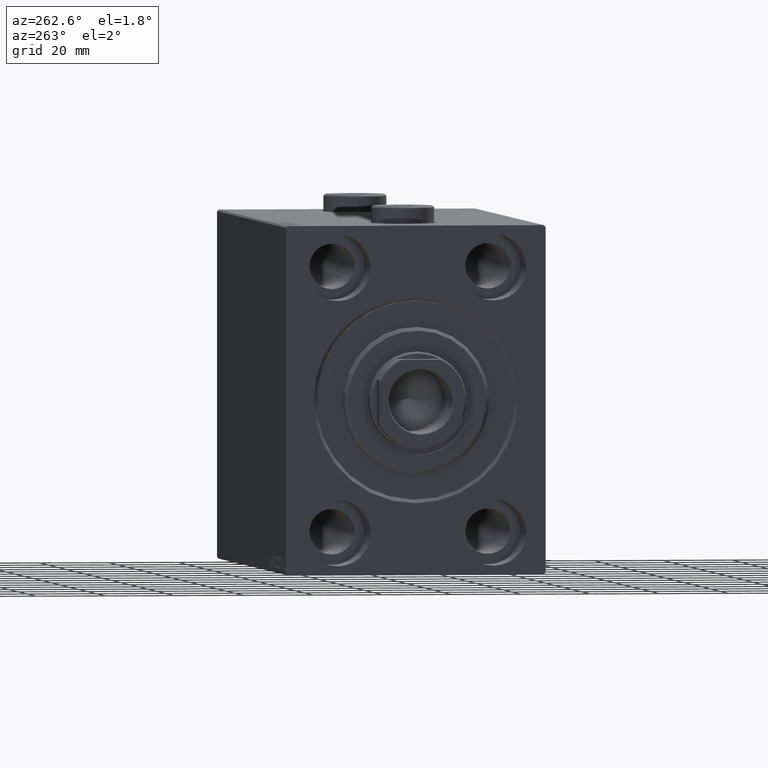
[diagram: clean part render]
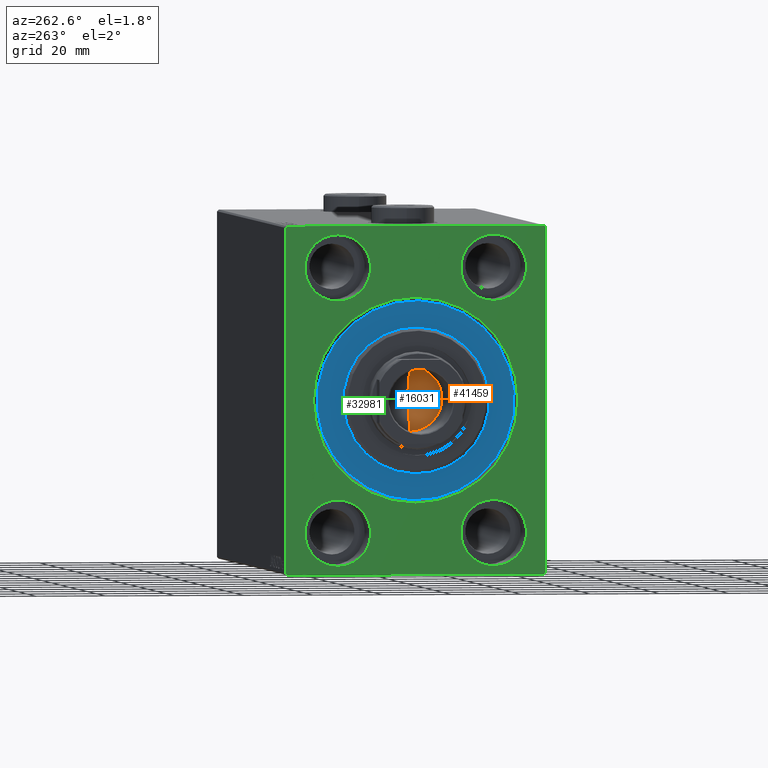
[diagram: same view with three faces highlighted in distinct colors, each labeled with its STEP entity id]
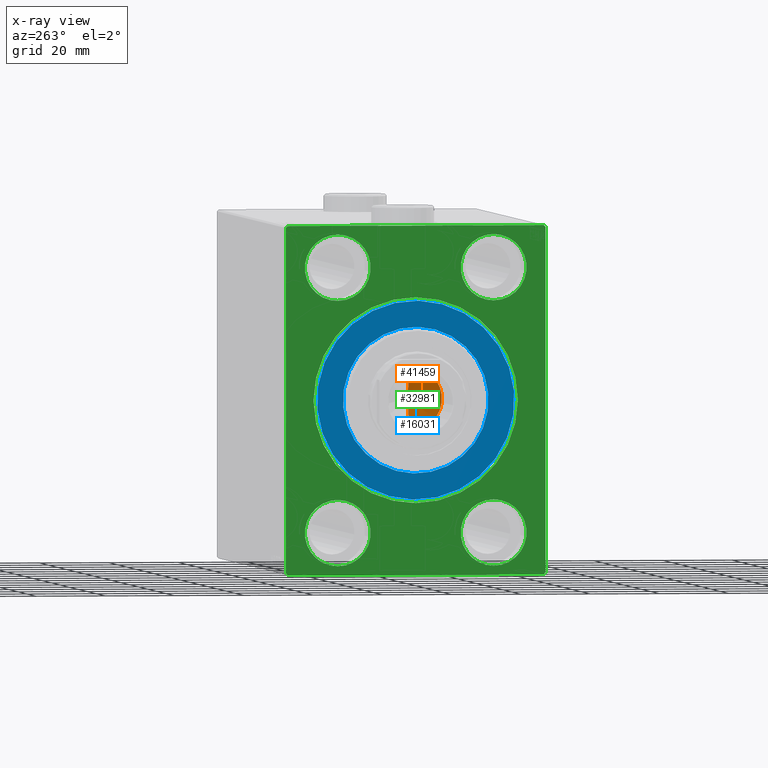
[diagram: x-ray of the same camera — body ghosted, the three highlighted faces saturated]
A machine part, auxiliary view with three faces highlighted in distinct colors.
The next image is the same camera in x-ray (body ghosted, the three faces saturated) — at least one of them is partly hidden behind the body in this view.
Their STEP definitions:

[orange] entity #41459 — the highlighted conical surface has half-angle 59 deg.
#547 = LINE ( 'NONE', #34926, #21147 ) ;
#1452 = DIRECTION ( 'NONE',  ( -0.8571673007021113344, 1.049727191138617463E-16, 0.5150380749100558209 ) ) ;
#1965 = CARTESIAN_POINT ( 'NONE',  ( -6.793016015247754405E-15, 0.000000000000000000, 120.4420392739950785 ) ) ;
#2909 = AXIS2_PLACEMENT_3D ( 'NONE', #24169, #15130, #17514 ) ;
#5193 = DIRECTION ( 'NONE',  ( -0.000000000000000000, -0.000000000000000000, 1.000000000000000000 ) ) ;
#8096 = CONICAL_SURFACE ( 'NONE', #28587, 9.249999999999994671, 1.029744258676652535 ) ;
#9778 = EDGE_LOOP ( 'NONE', ( #35232, #29695, #27644 ) ) ;
#10209 = EDGE_CURVE ( 'NONE', #35908, #23707, #547, .T. ) ;
#12288 = DIRECTION ( 'NONE',  ( 1.000000000000000000, 0.000000000000000000, 0.000000000000000000 ) ) ;
#13534 = VERTEX_POINT ( 'NONE', #30072 ) ;
#15130 = DIRECTION ( 'NONE',  ( -0.000000000000000000, -0.000000000000000000, 1.000000000000000000 ) ) ;
#17514 = DIRECTION ( 'NONE',  ( 1.000000000000000000, 0.000000000000000000, 0.000000000000000000 ) ) ;
#21147 = VECTOR ( 'NONE', #35592, 1000.000000000000000 ) ;
#21695 = CARTESIAN_POINT ( 'NONE',  ( 0.000000000000000000, 0.000000000000000000, 126.0000000000000284 ) ) ;
#23707 = VERTEX_POINT ( 'NONE', #39489 ) ;
#24169 = CARTESIAN_POINT ( 'NONE',  ( 0.000000000000000000, 0.000000000000000000, 126.0000000000000284 ) ) ;
#27644 = ORIENTED_EDGE ( 'NONE', *, *, #39535, .T. ) ;
#28587 = AXIS2_PLACEMENT_3D ( 'NONE', #21695, #5193, #12288 ) ;
#29695 = ORIENTED_EDGE ( 'NONE', *, *, #30519, .T. ) ;
#30072 = CARTESIAN_POINT ( 'NONE',  ( -9.249999999999994671, 1.132798289211300909E-15, 126.0000000000000284 ) ) ;
#30519 = EDGE_CURVE ( 'NONE', #35908, #13534, #45022, .T. ) ;
#33072 = CARTESIAN_POINT ( 'NONE',  ( -9.249999999999994671, 1.132798289211300909E-15, 126.0000000000000284 ) ) ;
#34926 = CARTESIAN_POINT ( 'NONE',  ( 9.249999999999994671, 0.000000000000000000, 126.0000000000000284 ) ) ;
#35098 = CIRCLE ( 'NONE', #2909, 9.249999999999994671 ) ;
#35232 = ORIENTED_EDGE ( 'NONE', *, *, #10209, .F. ) ;
#35592 = DIRECTION ( 'NONE',  ( 0.8571673007021113344, 0.000000000000000000, 0.5150380749100558209 ) ) ;
#35908 = VERTEX_POINT ( 'NONE', #1965 ) ;
#37043 = VECTOR ( 'NONE', #1452, 1000.000000000000000 ) ;
#39489 = CARTESIAN_POINT ( 'NONE',  ( 9.249999999999994671, 0.000000000000000000, 126.0000000000000284 ) ) ;
#39535 = EDGE_CURVE ( 'NONE', #13534, #23707, #35098, .T. ) ;
#41459 = ADVANCED_FACE ( 'NONE', ( #43002 ), #8096, .F. ) ;
#43002 = FACE_OUTER_BOUND ( 'NONE', #9778, .T. ) ;
#45022 = LINE ( 'NONE', #33072, #37043 ) ;

[blue] entity #16031 — the highlighted planar face has unit normal (1, 0, -0).
#978 = DIRECTION ( 'NONE',  ( 0.000000000000000000, 0.000000000000000000, 1.000000000000000000 ) ) ;
#1433 = FACE_OUTER_BOUND ( 'NONE', #12484, .T. ) ;
#5183 = AXIS2_PLACEMENT_3D ( 'NONE', #25950, #42470, #978 ) ;
#8649 = VERTEX_POINT ( 'NONE', #10970 ) ;
#9879 = VERTEX_POINT ( 'NONE', #35648 ) ;
#10970 = CARTESIAN_POINT ( 'NONE',  ( 0.000000000000000000, 0.000000000000000000, 21.00000000000000000 ) ) ;
#12069 = AXIS2_PLACEMENT_3D ( 'NONE', #13838, #14284, #27824 ) ;
#12484 = EDGE_LOOP ( 'NONE', ( #22077, #32961 ) ) ;
#13465 = CARTESIAN_POINT ( 'NONE',  ( 0.000000000000000000, 0.000000000000000000, 0.000000000000000000 ) ) ;
#13838 = CARTESIAN_POINT ( 'NONE',  ( 0.000000000000000000, 0.000000000000000000, 0.000000000000000000 ) ) ;
#14284 = DIRECTION ( 'NONE',  ( -1.000000000000000000, 0.000000000000000000, 0.000000000000000000 ) ) ;
#14299 = CIRCLE ( 'NONE', #12069, 28.50000000000000000 ) ;
#15628 = FACE_BOUND ( 'NONE', #25642, .T. ) ;
#15666 = VERTEX_POINT ( 'NONE', #25187 ) ;
#16031 = ADVANCED_FACE ( 'NONE', ( #15628, #1433 ), #21605, .F. ) ;
#16912 = CIRCLE ( 'NONE', #44723, 21.00000000000000000 ) ;
#19909 = CARTESIAN_POINT ( 'NONE',  ( 0.000000000000000000, 0.000000000000000000, -28.50000000000000000 ) ) ;
#21605 = PLANE ( 'NONE',  #5183 ) ;
#22077 = ORIENTED_EDGE ( 'NONE', *, *, #23617, .F. ) ;
#23093 = DIRECTION ( 'NONE',  ( 0.000000000000000000, 0.000000000000000000, 1.000000000000000000 ) ) ;
#23578 = DIRECTION ( 'NONE',  ( 0.000000000000000000, 0.000000000000000000, -1.000000000000000000 ) ) ;
#23617 = EDGE_CURVE ( 'NONE', #25319, #15666, #14299, .T. ) ;
#25187 = CARTESIAN_POINT ( 'NONE',  ( 0.000000000000000000, 3.490243377569956456E-15, 28.50000000000000000 ) ) ;
#25319 = VERTEX_POINT ( 'NONE', #19909 ) ;
#25642 = EDGE_LOOP ( 'NONE', ( #44313, #30105 ) ) ;
#25950 = CARTESIAN_POINT ( 'NONE',  ( 0.000000000000000000, 0.000000000000000000, 0.000000000000000000 ) ) ;
#27824 = DIRECTION ( 'NONE',  ( 0.000000000000000000, 0.000000000000000000, 1.000000000000000000 ) ) ;
#30105 = ORIENTED_EDGE ( 'NONE', *, *, #41191, .F. ) ;
#31249 = CIRCLE ( 'NONE', #31953, 28.50000000000000000 ) ;
#31397 = EDGE_CURVE ( 'NONE', #15666, #25319, #31249, .T. ) ;
#31953 = AXIS2_PLACEMENT_3D ( 'NONE', #40972, #40736, #23093 ) ;
#32961 = ORIENTED_EDGE ( 'NONE', *, *, #31397, .F. ) ;
#33641 = DIRECTION ( 'NONE',  ( 1.000000000000000000, -0.000000000000000000, 0.000000000000000000 ) ) ;
#34954 = CARTESIAN_POINT ( 'NONE',  ( 0.000000000000000000, 0.000000000000000000, 0.000000000000000000 ) ) ;
#35648 = CARTESIAN_POINT ( 'NONE',  ( 0.000000000000000000, 2.571758278209441661E-15, -21.00000000000000000 ) ) ;
#36621 = AXIS2_PLACEMENT_3D ( 'NONE', #13465, #33641, #23578 ) ;
#40736 = DIRECTION ( 'NONE',  ( -1.000000000000000000, 0.000000000000000000, 0.000000000000000000 ) ) ;
#40972 = CARTESIAN_POINT ( 'NONE',  ( 0.000000000000000000, 0.000000000000000000, 0.000000000000000000 ) ) ;
#41191 = EDGE_CURVE ( 'NONE', #9879, #8649, #43925, .T. ) ;
#42064 = DIRECTION ( 'NONE',  ( 1.000000000000000000, -0.000000000000000000, 0.000000000000000000 ) ) ;
#42291 = DIRECTION ( 'NONE',  ( 0.000000000000000000, 0.000000000000000000, -1.000000000000000000 ) ) ;
#42470 = DIRECTION ( 'NONE',  ( -1.000000000000000000, 0.000000000000000000, 0.000000000000000000 ) ) ;
#42475 = EDGE_CURVE ( 'NONE', #8649, #9879, #16912, .T. ) ;
#43925 = CIRCLE ( 'NONE', #36621, 21.00000000000000000 ) ;
#44313 = ORIENTED_EDGE ( 'NONE', *, *, #42475, .F. ) ;
#44723 = AXIS2_PLACEMENT_3D ( 'NONE', #34954, #42064, #42291 ) ;

[green] entity #32981 — the highlighted planar face has unit normal (1, 0, 0).
#44 = CARTESIAN_POINT ( 'NONE',  ( 0.000000000000000000, 22.50000000000000355, 47.49999999999999289 ) ) ;
#410 = CARTESIAN_POINT ( 'NONE',  ( 0.000000000000000000, 22.50000000000000355, 28.49999999999998934 ) ) ;
#786 = VERTEX_POINT ( 'NONE', #17875 ) ;
#869 = CARTESIAN_POINT ( 'NONE',  ( 0.000000000000000000, -37.50000000000000711, -50.00000000000000711 ) ) ;
#890 = DIRECTION ( 'NONE',  ( -0.000000000000000000, 0.7071067811865425767, -0.7071067811865525687 ) ) ;
#1255 = VECTOR ( 'NONE', #890, 999.9999999999998863 ) ;
#1481 = ORIENTED_EDGE ( 'NONE', *, *, #40982, .T. ) ;
#1700 = VERTEX_POINT ( 'NONE', #15171 ) ;
#2042 = AXIS2_PLACEMENT_3D ( 'NONE', #42349, #35242, #32026 ) ;
#2086 = CARTESIAN_POINT ( 'NONE',  ( 0.000000000000000000, 22.49999999999999645, -37.99999999999999289 ) ) ;
#2538 = DIRECTION ( 'NONE',  ( 0.000000000000000000, 0.000000000000000000, 1.000000000000000000 ) ) ;
#3499 = VERTEX_POINT ( 'NONE', #34744 ) ;
#3591 = LINE ( 'NONE', #28327, #5626 ) ;
#3823 = DIRECTION ( 'NONE',  ( 0.000000000000000000, -1.000000000000000000, -1.850371707708594316E-16 ) ) ;
#4116 = VECTOR ( 'NONE', #44334, 1000.000000000000114 ) ;
#4309 = LINE ( 'NONE', #869, #19635 ) ;
#4328 = LINE ( 'NONE', #24754, #1255 ) ;
#4497 = AXIS2_PLACEMENT_3D ( 'NONE', #36946, #5568, #16103 ) ;
#4880 = CIRCLE ( 'NONE', #14357, 9.500000000000001776 ) ;
#5056 = CARTESIAN_POINT ( 'NONE',  ( 0.000000000000000000, 0.000000000000000000, 0.000000000000000000 ) ) ;
#5064 = DIRECTION ( 'NONE',  ( -1.000000000000000000, 0.000000000000000000, 0.000000000000000000 ) ) ;
#5073 = EDGE_CURVE ( 'NONE', #23620, #17136, #4328, .T. ) ;
#5568 = DIRECTION ( 'NONE',  ( 1.000000000000000000, 0.000000000000000000, 0.000000000000000000 ) ) ;
#5626 = VECTOR ( 'NONE', #3823, 1000.000000000000000 ) ;
#5826 = ORIENTED_EDGE ( 'NONE', *, *, #30006, .T. ) ;
#5887 = EDGE_CURVE ( 'NONE', #10347, #35758, #44471, .T. ) ;
#6515 = FACE_BOUND ( 'NONE', #33586, .T. ) ;
#6991 = EDGE_CURVE ( 'NONE', #7014, #26951, #20330, .T. ) ;
#7014 = VERTEX_POINT ( 'NONE', #10959 ) ;
#7355 = VECTOR ( 'NONE', #41485, 1000.000000000000114 ) ;
#7714 = CARTESIAN_POINT ( 'NONE',  ( 0.000000000000000000, 37.50000000000000711, -49.50000000000000000 ) ) ;
#8457 = AXIS2_PLACEMENT_3D ( 'NONE', #8715, #15789, #43991 ) ;
#8633 = EDGE_CURVE ( 'NONE', #1700, #786, #4309, .T. ) ;
#8715 = CARTESIAN_POINT ( 'NONE',  ( 0.000000000000000000, -22.50000000000000711, -37.99999999999999289 ) ) ;
#8780 = EDGE_CURVE ( 'NONE', #10034, #786, #14339, .T. ) ;
#8839 = DIRECTION ( 'NONE',  ( -1.000000000000000000, 0.000000000000000000, 0.000000000000000000 ) ) ;
#9063 = EDGE_CURVE ( 'NONE', #14307, #3499, #38692, .T. ) ;
#9283 = CARTESIAN_POINT ( 'NONE',  ( 0.000000000000000000, 37.50000000000000711, -49.50000000000000000 ) ) ;
#9336 = DIRECTION ( 'NONE',  ( -1.000000000000000000, 0.000000000000000000, 0.000000000000000000 ) ) ;
#9713 = ORIENTED_EDGE ( 'NONE', *, *, #6991, .F. ) ;
#10034 = VERTEX_POINT ( 'NONE', #9283 ) ;
#10347 = VERTEX_POINT ( 'NONE', #43600 ) ;
#10408 = FACE_BOUND ( 'NONE', #12511, .T. ) ;
#10606 = VERTEX_POINT ( 'NONE', #10706 ) ;
#10638 = CARTESIAN_POINT ( 'NONE',  ( 0.000000000000000000, 36.99999999999999289, 50.00000000000000711 ) ) ;
#10706 = CARTESIAN_POINT ( 'NONE',  ( 0.000000000000000000, -37.50000000000000711, 49.49999999999999289 ) ) ;
#10959 = CARTESIAN_POINT ( 'NONE',  ( 0.000000000000000000, -22.50000000000000711, -28.49999999999998934 ) ) ;
#11828 = CARTESIAN_POINT ( 'NONE',  ( 0.000000000000000000, 37.50000000000000711, -50.00000000000000000 ) ) ;
#12051 = EDGE_LOOP ( 'NONE', ( #37882, #12460 ) ) ;
#12166 = ORIENTED_EDGE ( 'NONE', *, *, #23024, .F. ) ;
#12460 = ORIENTED_EDGE ( 'NONE', *, *, #27734, .F. ) ;
#12511 = EDGE_LOOP ( 'NONE', ( #18538, #26890 ) ) ;
#12838 = LINE ( 'NONE', #27500, #7355 ) ;
#13143 = FACE_BOUND ( 'NONE', #32748, .T. ) ;
#13663 = DIRECTION ( 'NONE',  ( 0.000000000000000000, 0.000000000000000000, 1.000000000000000000 ) ) ;
#13964 = CIRCLE ( 'NONE', #33000, 9.500000000000001776 ) ;
#14054 = DIRECTION ( 'NONE',  ( 0.000000000000000000, 0.000000000000000000, -1.000000000000000000 ) ) ;
#14307 = VERTEX_POINT ( 'NONE', #19754 ) ;
#14339 = LINE ( 'NONE', #7714, #37187 ) ;
#14357 = AXIS2_PLACEMENT_3D ( 'NONE', #39675, #5064, #19038 ) ;
#14481 = ORIENTED_EDGE ( 'NONE', *, *, #31022, .F. ) ;
#14519 = AXIS2_PLACEMENT_3D ( 'NONE', #41046, #33923, #2538 ) ;
#15171 = CARTESIAN_POINT ( 'NONE',  ( 0.000000000000000000, -37.00000000000003553, -50.00000000000000711 ) ) ;
#15194 = AXIS2_PLACEMENT_3D ( 'NONE', #2086, #30945, #16971 ) ;
#15789 = DIRECTION ( 'NONE',  ( -1.000000000000000000, 0.000000000000000000, 0.000000000000000000 ) ) ;
#16103 = DIRECTION ( 'NONE',  ( 0.000000000000000000, 0.000000000000000000, -1.000000000000000000 ) ) ;
#16427 = DIRECTION ( 'NONE',  ( 1.000000000000000000, 0.000000000000000000, 0.000000000000000000 ) ) ;
#16604 = LINE ( 'NONE', #30354, #4116 ) ;
#16614 = CIRCLE ( 'NONE', #26853, 9.500000000000001776 ) ;
#16907 = CARTESIAN_POINT ( 'NONE',  ( 0.000000000000000000, 22.49999999999999645, -28.49999999999998934 ) ) ;
#16971 = DIRECTION ( 'NONE',  ( 0.000000000000000000, 0.000000000000000000, 1.000000000000000000 ) ) ;
#17136 = VERTEX_POINT ( 'NONE', #28681 ) ;
#17197 = CARTESIAN_POINT ( 'NONE',  ( 0.000000000000000000, -37.50000000000000711, -49.50000000000003553 ) ) ;
#17751 = EDGE_CURVE ( 'NONE', #42501, #20701, #35146, .T. ) ;
#17875 = CARTESIAN_POINT ( 'NONE',  ( 0.000000000000000000, 37.00000000000000711, -50.00000000000000000 ) ) ;
#17944 = DIRECTION ( 'NONE',  ( 0.000000000000000000, 0.000000000000000000, 1.000000000000000000 ) ) ;
#18270 = ORIENTED_EDGE ( 'NONE', *, *, #32224, .F. ) ;
#18538 = ORIENTED_EDGE ( 'NONE', *, *, #42834, .F. ) ;
#18746 = ORIENTED_EDGE ( 'NONE', *, *, #9063, .F. ) ;
#18880 = VERTEX_POINT ( 'NONE', #410 ) ;
#18974 = ORIENTED_EDGE ( 'NONE', *, *, #27810, .F. ) ;
#19038 = DIRECTION ( 'NONE',  ( 0.000000000000000000, 0.000000000000000000, 1.000000000000000000 ) ) ;
#19635 = VECTOR ( 'NONE', #35252, 1000.000000000000000 ) ;
#19753 = CARTESIAN_POINT ( 'NONE',  ( 0.000000000000000000, -22.50000000000000711, -47.49999999999999289 ) ) ;
#19754 = CARTESIAN_POINT ( 'NONE',  ( 0.000000000000000000, -22.49999999999999645, 47.49999999999999289 ) ) ;
#19983 = DIRECTION ( 'NONE',  ( 0.000000000000000000, 0.000000000000000000, 1.000000000000000000 ) ) ;
#20175 = CIRCLE ( 'NONE', #35540, 29.50000000000002842 ) ;
#20244 = CARTESIAN_POINT ( 'NONE',  ( 0.000000000000000000, 0.000000000000000000, 0.000000000000000000 ) ) ;
#20330 = CIRCLE ( 'NONE', #2042, 9.500000000000001776 ) ;
#20701 = VERTEX_POINT ( 'NONE', #20775 ) ;
#20712 = ORIENTED_EDGE ( 'NONE', *, *, #20745, .F. ) ;
#20745 = EDGE_CURVE ( 'NONE', #10034, #17136, #26020, .T. ) ;
#20775 = CARTESIAN_POINT ( 'NONE',  ( 0.000000000000000000, 0.000000000000000000, 29.50000000000002842 ) ) ;
#21900 = DIRECTION ( 'NONE',  ( 0.000000000000000000, -0.7071067811865474617, -0.7071067811865474617 ) ) ;
#22355 = DIRECTION ( 'NONE',  ( 0.000000000000000000, -1.387778780781445676E-16, 1.000000000000000000 ) ) ;
#23024 = EDGE_CURVE ( 'NONE', #26951, #7014, #23792, .T. ) ;
#23620 = VERTEX_POINT ( 'NONE', #10638 ) ;
#23696 = PLANE ( 'NONE',  #30549 ) ;
#23792 = CIRCLE ( 'NONE', #8457, 9.500000000000001776 ) ;
#24208 = CARTESIAN_POINT ( 'NONE',  ( 0.000000000000000000, 3.612708057484695548E-15, -29.50000000000002842 ) ) ;
#24383 = FACE_BOUND ( 'NONE', #12051, .T. ) ;
#24607 = ORIENTED_EDGE ( 'NONE', *, *, #17751, .T. ) ;
#24728 = CARTESIAN_POINT ( 'NONE',  ( 0.000000000000000000, -37.00000000000000711, 49.99999999999999289 ) ) ;
#24754 = CARTESIAN_POINT ( 'NONE',  ( 0.000000000000000000, 36.99999999999999289, 50.00000000000000711 ) ) ;
#25021 = VERTEX_POINT ( 'NONE', #17197 ) ;
#25997 = ORIENTED_EDGE ( 'NONE', *, *, #8780, .T. ) ;
#26020 = LINE ( 'NONE', #11828, #40316 ) ;
#26216 = AXIS2_PLACEMENT_3D ( 'NONE', #30520, #8839, #19983 ) ;
#26853 = AXIS2_PLACEMENT_3D ( 'NONE', #37510, #9336, #13663 ) ;
#26890 = ORIENTED_EDGE ( 'NONE', *, *, #5887, .F. ) ;
#26951 = VERTEX_POINT ( 'NONE', #19753 ) ;
#27034 = EDGE_LOOP ( 'NONE', ( #18270, #37254, #18974, #28972, #20712, #25997, #36033, #1481 ) ) ;
#27500 = CARTESIAN_POINT ( 'NONE',  ( 0.000000000000000000, -37.00000000000003553, -50.00000000000000711 ) ) ;
#27734 = EDGE_CURVE ( 'NONE', #18880, #34955, #16614, .T. ) ;
#27810 = EDGE_CURVE ( 'NONE', #23620, #34396, #3591, .T. ) ;
#28327 = CARTESIAN_POINT ( 'NONE',  ( 0.000000000000000000, 37.49999999999999289, 50.00000000000000711 ) ) ;
#28681 = CARTESIAN_POINT ( 'NONE',  ( 0.000000000000000000, 37.49999999999999289, 49.50000000000000000 ) ) ;
#28972 = ORIENTED_EDGE ( 'NONE', *, *, #5073, .T. ) ;
#30006 = EDGE_CURVE ( 'NONE', #20701, #42501, #20175, .T. ) ;
#30354 = CARTESIAN_POINT ( 'NONE',  ( 0.000000000000000000, -37.50000000000000711, 49.49999999999999289 ) ) ;
#30404 = EDGE_CURVE ( 'NONE', #10606, #34396, #16604, .T. ) ;
#30520 = CARTESIAN_POINT ( 'NONE',  ( 0.000000000000000000, -22.49999999999999645, 37.99999999999999289 ) ) ;
#30549 = AXIS2_PLACEMENT_3D ( 'NONE', #20244, #37656, #14054 ) ;
#30886 = CARTESIAN_POINT ( 'NONE',  ( 0.000000000000000000, -37.50000000000000711, 49.99999999999999289 ) ) ;
#30945 = DIRECTION ( 'NONE',  ( -1.000000000000000000, 0.000000000000000000, 0.000000000000000000 ) ) ;
#31012 = CARTESIAN_POINT ( 'NONE',  ( 0.000000000000000000, 22.49999999999999645, -37.99999999999999289 ) ) ;
#31022 = EDGE_CURVE ( 'NONE', #3499, #14307, #4880, .T. ) ;
#31783 = LINE ( 'NONE', #30886, #41484 ) ;
#32026 = DIRECTION ( 'NONE',  ( 0.000000000000000000, 0.000000000000000000, 1.000000000000000000 ) ) ;
#32224 = EDGE_CURVE ( 'NONE', #10606, #25021, #31783, .T. ) ;
#32748 = EDGE_LOOP ( 'NONE', ( #18746, #14481 ) ) ;
#32981 = ADVANCED_FACE ( 'NONE', ( #6515, #10408, #13143, #24383, #38348, #41117 ), #23696, .F. ) ;
#33000 = AXIS2_PLACEMENT_3D ( 'NONE', #31012, #38127, #17944 ) ;
#33586 = EDGE_LOOP ( 'NONE', ( #5826, #24607 ) ) ;
#33923 = DIRECTION ( 'NONE',  ( -1.000000000000000000, 0.000000000000000000, 0.000000000000000000 ) ) ;
#34396 = VERTEX_POINT ( 'NONE', #24728 ) ;
#34744 = CARTESIAN_POINT ( 'NONE',  ( 0.000000000000000000, -22.49999999999999645, 28.49999999999998934 ) ) ;
#34955 = VERTEX_POINT ( 'NONE', #44 ) ;
#35146 = CIRCLE ( 'NONE', #4497, 29.50000000000002842 ) ;
#35242 = DIRECTION ( 'NONE',  ( -1.000000000000000000, 0.000000000000000000, 0.000000000000000000 ) ) ;
#35252 = DIRECTION ( 'NONE',  ( 0.000000000000000000, 1.000000000000000000, 9.251858538542970348E-17 ) ) ;
#35540 = AXIS2_PLACEMENT_3D ( 'NONE', #5056, #16427, #41640 ) ;
#35758 = VERTEX_POINT ( 'NONE', #16907 ) ;
#36033 = ORIENTED_EDGE ( 'NONE', *, *, #8633, .F. ) ;
#36452 = EDGE_CURVE ( 'NONE', #34955, #18880, #42366, .T. ) ;
#36946 = CARTESIAN_POINT ( 'NONE',  ( 0.000000000000000000, 0.000000000000000000, 0.000000000000000000 ) ) ;
#37187 = VECTOR ( 'NONE', #21900, 1000.000000000000114 ) ;
#37254 = ORIENTED_EDGE ( 'NONE', *, *, #30404, .T. ) ;
#37510 = CARTESIAN_POINT ( 'NONE',  ( 0.000000000000000000, 22.50000000000000355, 37.99999999999999289 ) ) ;
#37656 = DIRECTION ( 'NONE',  ( 1.000000000000000000, 0.000000000000000000, 0.000000000000000000 ) ) ;
#37882 = ORIENTED_EDGE ( 'NONE', *, *, #36452, .F. ) ;
#38127 = DIRECTION ( 'NONE',  ( -1.000000000000000000, 0.000000000000000000, 0.000000000000000000 ) ) ;
#38348 = FACE_BOUND ( 'NONE', #44453, .T. ) ;
#38692 = CIRCLE ( 'NONE', #26216, 9.500000000000001776 ) ;
#39675 = CARTESIAN_POINT ( 'NONE',  ( 0.000000000000000000, -22.49999999999999645, 37.99999999999999289 ) ) ;
#40316 = VECTOR ( 'NONE', #22355, 1000.000000000000000 ) ;
#40982 = EDGE_CURVE ( 'NONE', #1700, #25021, #12838, .T. ) ;
#41046 = CARTESIAN_POINT ( 'NONE',  ( 0.000000000000000000, 22.50000000000000355, 37.99999999999999289 ) ) ;
#41117 = FACE_OUTER_BOUND ( 'NONE', #27034, .T. ) ;
#41484 = VECTOR ( 'NONE', #44873, 1000.000000000000000 ) ;
#41485 = DIRECTION ( 'NONE',  ( -0.000000000000000000, -0.7071067811865474617, 0.7071067811865474617 ) ) ;
#41640 = DIRECTION ( 'NONE',  ( 0.000000000000000000, 0.000000000000000000, -1.000000000000000000 ) ) ;
#42349 = CARTESIAN_POINT ( 'NONE',  ( 0.000000000000000000, -22.50000000000000711, -37.99999999999999289 ) ) ;
#42366 = CIRCLE ( 'NONE', #14519, 9.500000000000001776 ) ;
#42501 = VERTEX_POINT ( 'NONE', #24208 ) ;
#42834 = EDGE_CURVE ( 'NONE', #35758, #10347, #13964, .T. ) ;
#43600 = CARTESIAN_POINT ( 'NONE',  ( 0.000000000000000000, 22.49999999999999645, -47.49999999999999289 ) ) ;
#43991 = DIRECTION ( 'NONE',  ( 0.000000000000000000, 0.000000000000000000, 1.000000000000000000 ) ) ;
#44334 = DIRECTION ( 'NONE',  ( -0.000000000000000000, 0.7071067811865474617, 0.7071067811865474617 ) ) ;
#44453 = EDGE_LOOP ( 'NONE', ( #9713, #12166 ) ) ;
#44471 = CIRCLE ( 'NONE', #15194, 9.500000000000001776 ) ;
#44873 = DIRECTION ( 'NONE',  ( 0.000000000000000000, 0.000000000000000000, -1.000000000000000000 ) ) ;